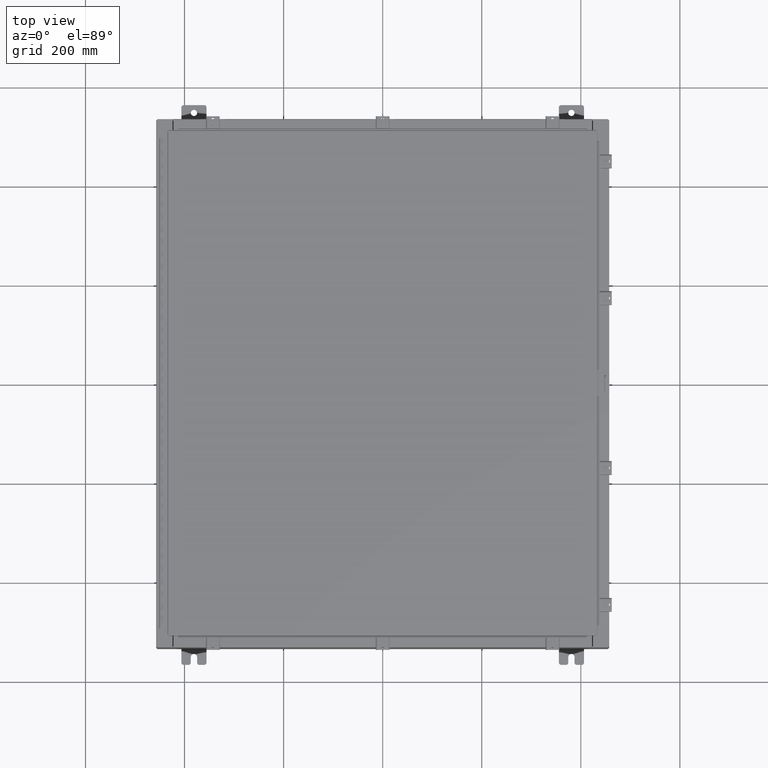
[diagram: clean part render]
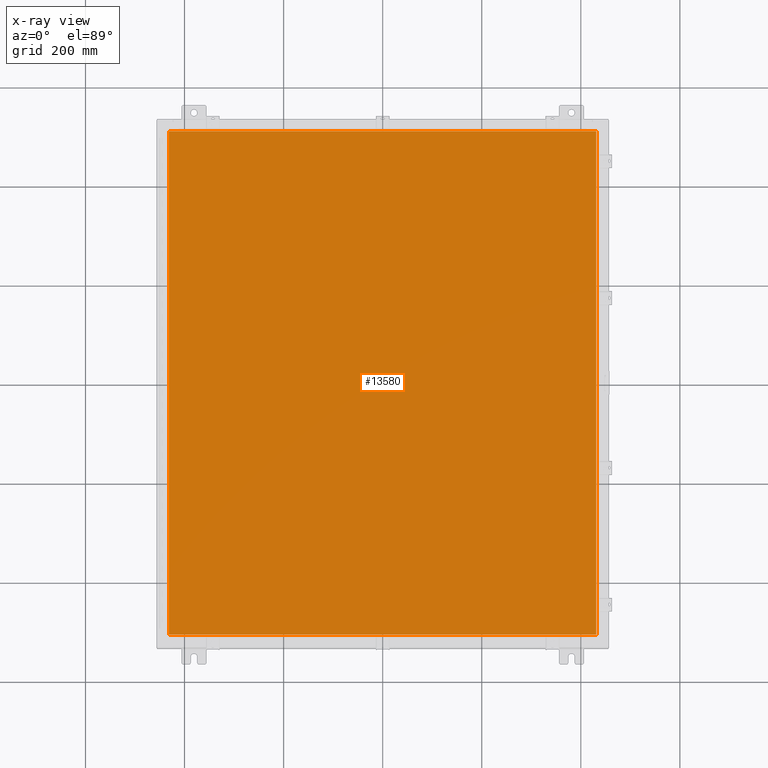
[diagram: x-ray — body ghosted, one internal face saturated and labeled with its STEP entity id]
A machine part, top view, then the same camera in x-ray: the body is ghosted and one INTERNAL B-rep face — a face not visible from any outside direction — is saturated and labeled: STEP entity #13580.
In plain terms, the highlighted planar face has unit normal (0, 0, -1).
Its self-contained STEP definition (entity closure, byte-faithful):
#3928 = DIRECTION ( 'NONE',  ( 0.0000000000000000000, -1.000000000000000000, 0.0000000000000000000 ) ) ;
#4579 = EDGE_CURVE ( 'NONE', #21233, #27308, #16818, .T. ) ;
#4930 = VECTOR ( 'NONE', #43447, 39.37007874015748100 ) ;
#5555 = CARTESIAN_POINT ( 'NONE',  ( -16.99029999999999800, -20.00630000000000700, -0.07469999999999797600 ) ) ;
#5968 = VERTEX_POINT ( 'NONE', #46069 ) ;
#7250 = CARTESIAN_POINT ( 'NONE',  ( 16.99029999999999800, -20.00630000000000300, -0.07470000000000015500 ) ) ;
#9471 = DIRECTION ( 'NONE',  ( 1.000000000000000000, -0.0000000000000000000, -0.0000000000000000000 ) ) ;
#10644 = VECTOR ( 'NONE', #3928, 39.37007874015748100 ) ;
#11162 = EDGE_CURVE ( 'NONE', #35690, #21233, #42024, .T. ) ;
#11198 = DIRECTION ( 'NONE',  ( 0.0000000000000000000, 1.000000000000000000, 0.0000000000000000000 ) ) ;
#13187 = DIRECTION ( 'NONE',  ( 0.0000000000000000000, 0.0000000000000000000, -1.000000000000000000 ) ) ;
#13580 = ADVANCED_FACE ( 'NONE', ( #33786 ), #36721, .T. ) ;
#14865 = ORIENTED_EDGE ( 'NONE', *, *, #4579, .F. ) ;
#15937 = CARTESIAN_POINT ( 'NONE',  ( 16.99029999999999800, 20.00630000000000700, -0.07469999999999797600 ) ) ;
#16569 = LINE ( 'NONE', #15937, #4930 ) ;
#16818 = LINE ( 'NONE', #5555, #36492 ) ;
#17428 = CARTESIAN_POINT ( 'NONE',  ( 16.99029999999999800, -20.00630000000000300, -0.07470000000000015500 ) ) ;
#19557 = LINE ( 'NONE', #7250, #48460 ) ;
#19681 = CARTESIAN_POINT ( 'NONE',  ( -16.99029999999999400, 20.00630000000000300, -0.07470000000000015500 ) ) ;
#21233 = VERTEX_POINT ( 'NONE', #27098 ) ;
#24905 = EDGE_CURVE ( 'NONE', #27308, #5968, #19557, .T. ) ;
#25201 = ORIENTED_EDGE ( 'NONE', *, *, #31319, .F. ) ;
#26694 = EDGE_LOOP ( 'NONE', ( #37939, #14865, #38282, #25201 ) ) ;
#27098 = CARTESIAN_POINT ( 'NONE',  ( -16.99029999999999800, -20.00630000000000300, -0.07470000000000015500 ) ) ;
#27308 = VERTEX_POINT ( 'NONE', #17428 ) ;
#27663 = CARTESIAN_POINT ( 'NONE',  ( -16.99029999999999400, 20.00630000000000300, -0.07470000000000015500 ) ) ;
#28496 = AXIS2_PLACEMENT_3D ( 'NONE', #28862, #13187, #40701 ) ;
#28862 = CARTESIAN_POINT ( 'NONE',  ( 0.0000000000000000000, 0.0000000000000000000, -0.07470000000000015500 ) ) ;
#31319 = EDGE_CURVE ( 'NONE', #5968, #35690, #16569, .T. ) ;
#33786 = FACE_OUTER_BOUND ( 'NONE', #26694, .T. ) ;
#35690 = VERTEX_POINT ( 'NONE', #27663 ) ;
#36492 = VECTOR ( 'NONE', #9471, 39.37007874015748100 ) ;
#36721 = PLANE ( 'NONE',  #28496 ) ;
#37939 = ORIENTED_EDGE ( 'NONE', *, *, #24905, .F. ) ;
#38282 = ORIENTED_EDGE ( 'NONE', *, *, #11162, .F. ) ;
#40701 = DIRECTION ( 'NONE',  ( -1.000000000000000000, 0.0000000000000000000, -0.0000000000000000000 ) ) ;
#42024 = LINE ( 'NONE', #19681, #10644 ) ;
#43447 = DIRECTION ( 'NONE',  ( -1.000000000000000000, -0.0000000000000000000, -0.0000000000000000000 ) ) ;
#46069 = CARTESIAN_POINT ( 'NONE',  ( 16.99029999999999800, 20.00630000000000300, -0.07470000000000015500 ) ) ;
#48460 = VECTOR ( 'NONE', #11198, 39.37007874015748100 ) ;